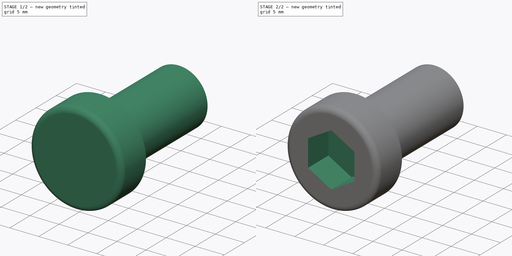
[diagram: build sequence overview — one tinted view per stage of 2, left to right]
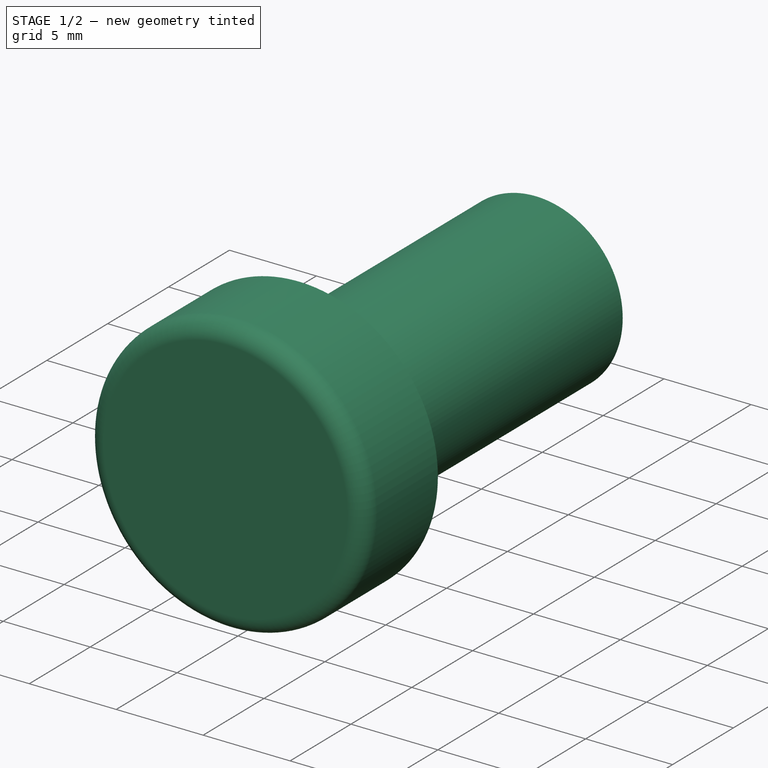
[diagram: stage 1 of 2 — iso view after this stage's code; geometry added in this stage tinted green]
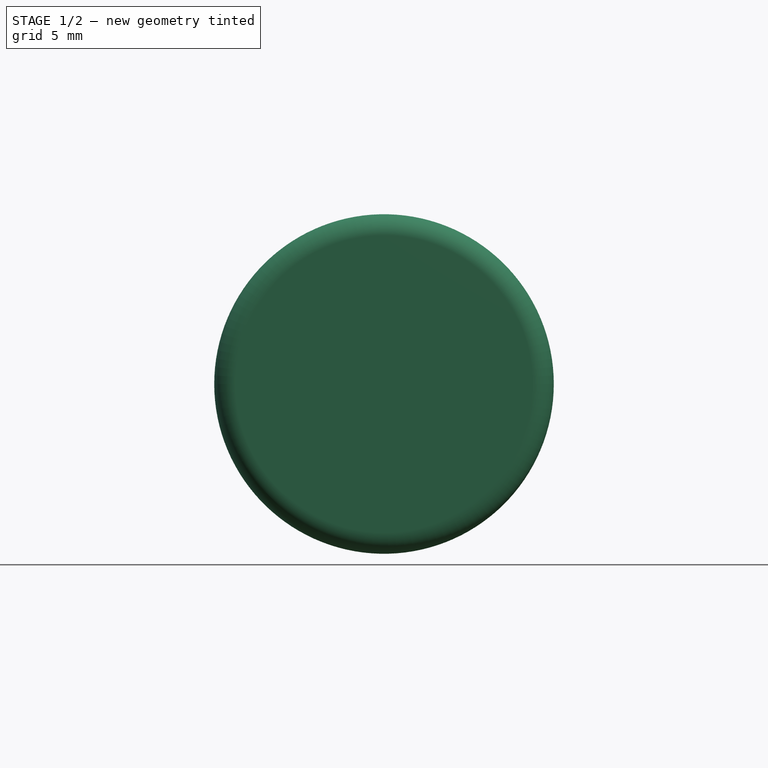
[diagram: stage 1 of 2 — front view after this stage's code; geometry added in this stage tinted green]
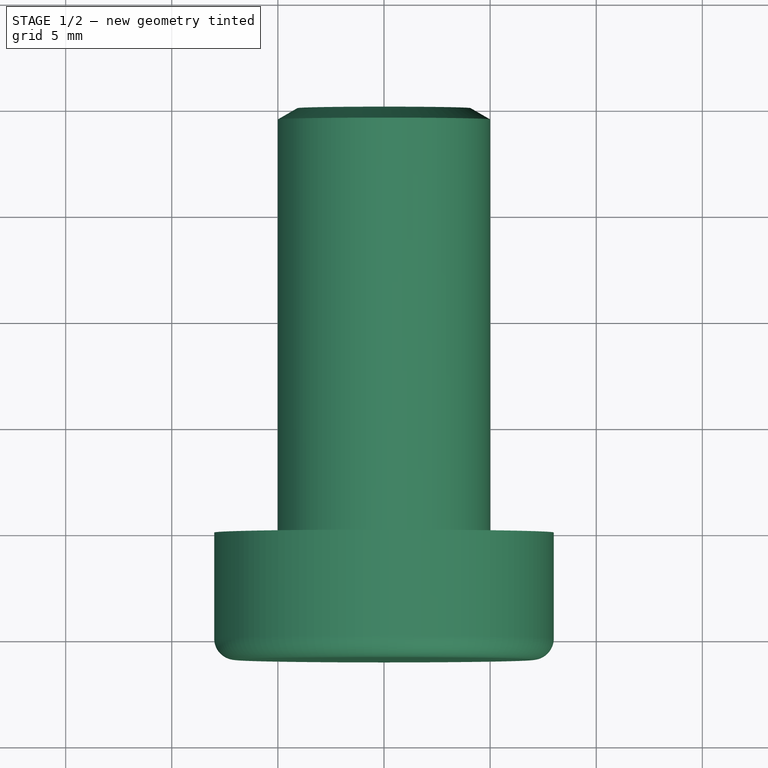
[diagram: stage 1 of 2 — top view after this stage's code; geometry added in this stage tinted green]
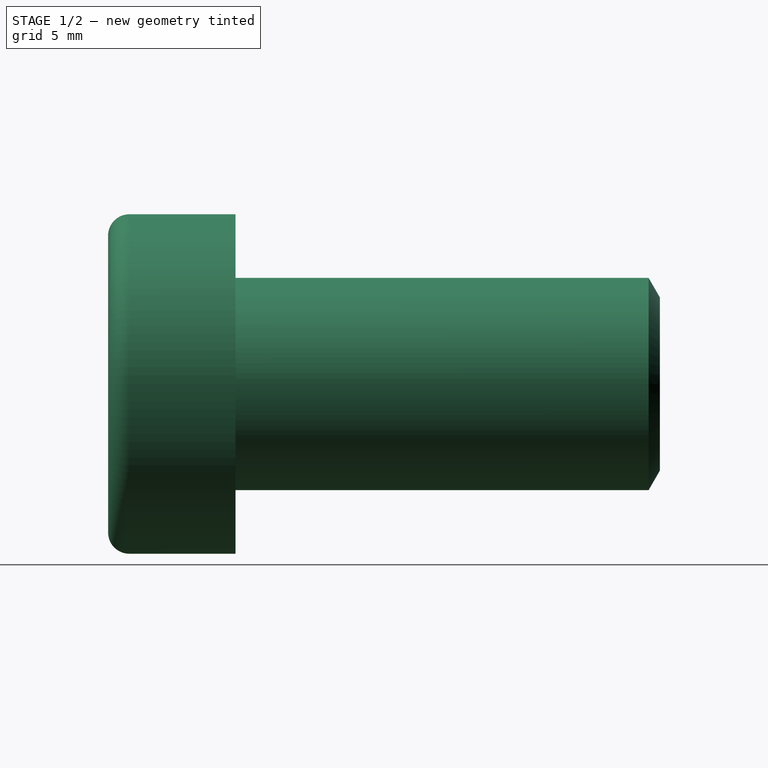
[diagram: stage 1 of 2 — right view after this stage's code; geometry added in this stage tinted green]
FCSTD DOCUMENT  (FreeCAD 0.14R3700 (Git))
Label: Zyl-Schraube_DIN6912-M10
License: CC-BY 3.0
LicenseURL: http://creativecommons.org/licenses/by/3.0/
objects: Sketcher::SketchObject×2, PartDesign::Revolution×1, PartDesign::Pocket×1
note: 6 computed .brp shape members not serialized (recipe doc carries the construction recipe); baked Part::Feature solids carry a one-line shape summary decoded from their .brp

FEATURE [Sketcher::SketchObject] Sketch
  sketch-geometry (8):
    g0: LineSegment StartX=5 StartY=0 StartZ=0 EndX=8 EndY=0 EndZ=0
    g1: LineSegment StartX=8 StartY=0 StartZ=0 EndX=8 EndY=-5 EndZ=0
    g2: LineSegment StartX=7 StartY=-6 StartZ=0 EndX=0 EndY=-6 EndZ=0
    g3: LineSegment StartX=0 StartY=-6 StartZ=0 EndX=0 EndY=20 EndZ=0
    g4: LineSegment StartX=0 StartY=20 StartZ=0 EndX=4.08 EndY=20 EndZ=0
    g5: LineSegment StartX=4.08 StartY=20 StartZ=0 EndX=5 EndY=19.4688 EndZ=0
    g6: LineSegment StartX=5 StartY=19.4688 StartZ=0 EndX=5 EndY=0 EndZ=0
    g7: ArcOfCircle CenterX=7 CenterY=-5 CenterZ=0 NormalX=0 NormalY=0 NormalZ=1 Radius=1 StartAngle=4.71239 EndAngle=6.28319
  constraints (23):
    c: PointOnObject(g0,g-1)
    c: Horizontal(g0)
    c: Coincident(g0,g1)
    c: Vertical(g1)
    c: PointOnObject(g2,g-2)
    c: Horizontal(g2)
    c: Coincident(g2,g3)
    c: Vertical(g3)
    c: Coincident(g3,g4)
    c: Horizontal(g4)
    c: Coincident(g4,g5)
    c: Coincident(g5,g6)
    c: Coincident(g6,g0)
    c: Vertical(g6)
    c: Tangent(g2,g7)
    c: Tangent(g1,g7)
    c: Radius(g7) = 1
    c: Distance(g2,g0) = 6
    c: Distance(g1,g3) = 8
    c: Distance(g5,g3) = 5
    c: Angle(g4,g5) = 2.61799
    c: Distance(g4) = 4.08
    c: Distance(g4,g0) = 20
FEATURE [PartDesign::Revolution] Revolution
  Angle = 360
  Axis = (0,1,0)
  Base = (0,0,0)
  ReferenceAxis = -> Sketch [V_Axis]
  Reversed = true
  Sketch = -> Sketch
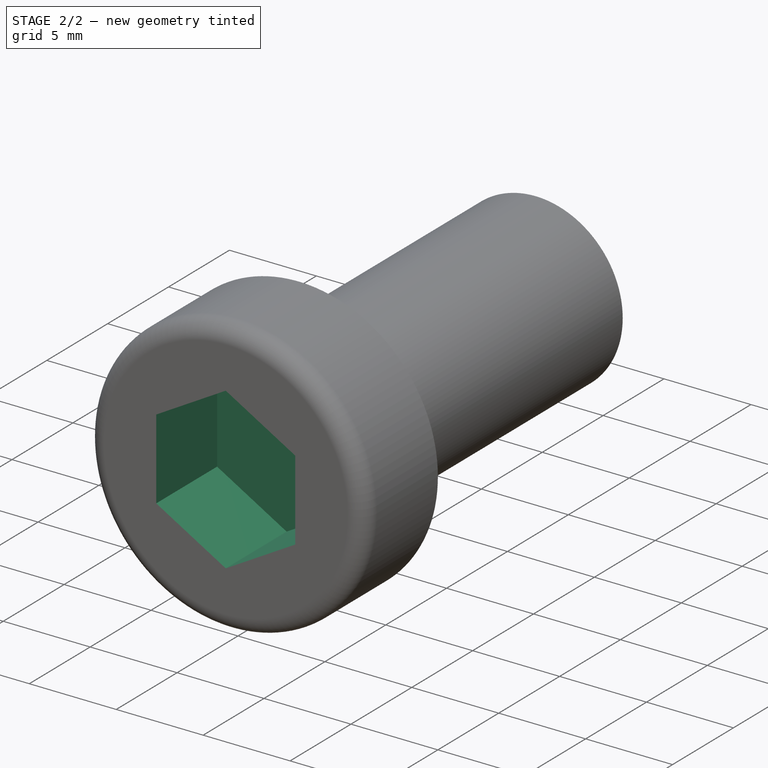
[diagram: stage 2 of 2 — iso view after this stage's code; geometry added in this stage tinted green]
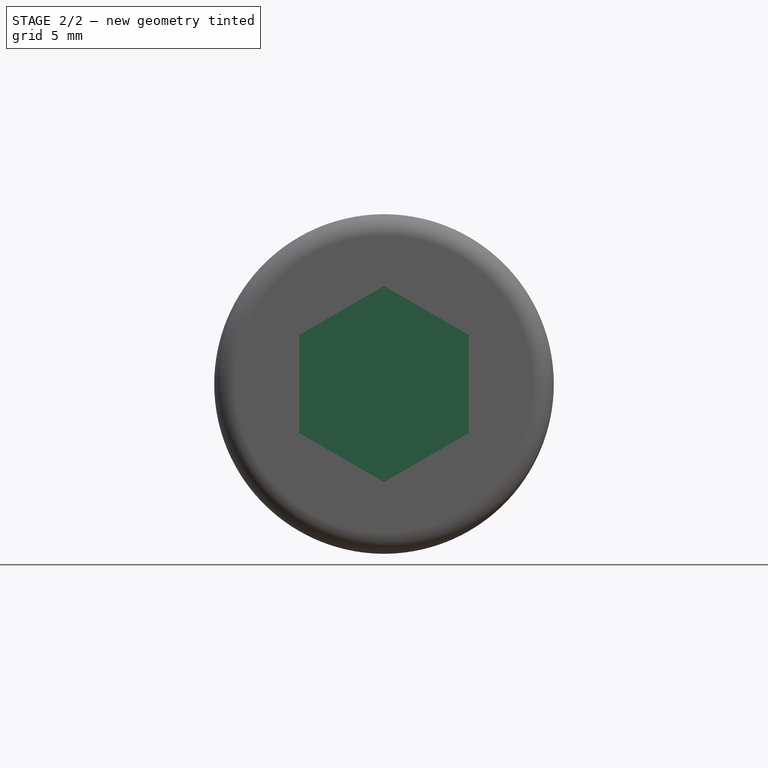
[diagram: stage 2 of 2 — front view after this stage's code; geometry added in this stage tinted green]
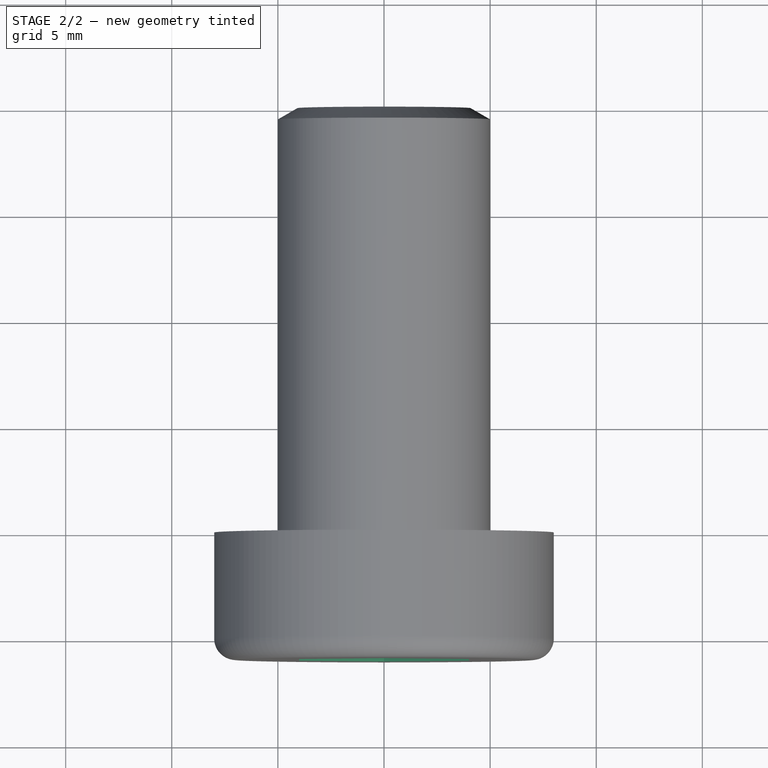
[diagram: stage 2 of 2 — top view after this stage's code; geometry added in this stage tinted green]
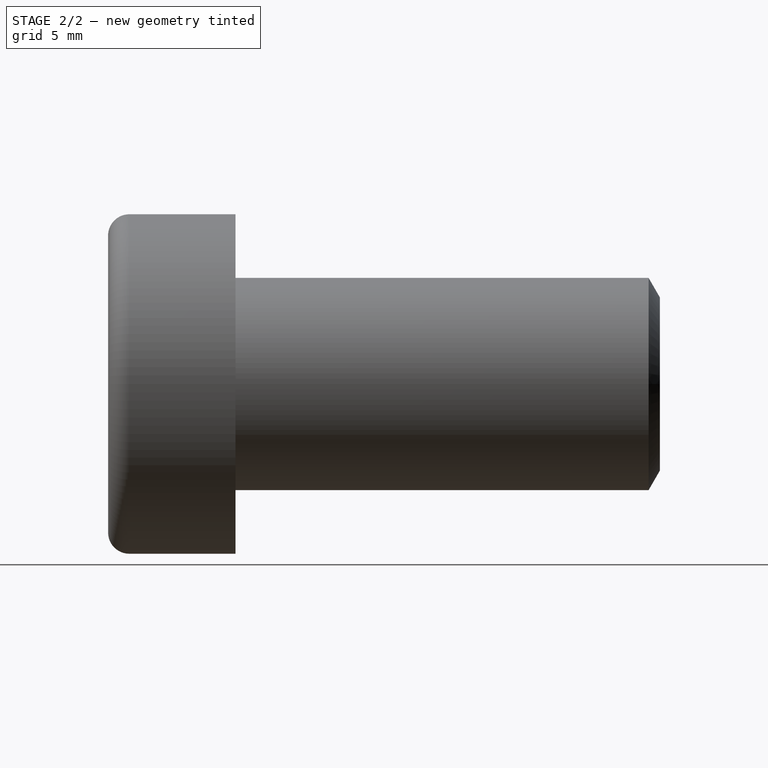
[diagram: stage 2 of 2 — right view after this stage's code; geometry added in this stage tinted green]
FEATURE [Sketcher::SketchObject] Sketch001
  Placement = pos=(0,-6,0) rot=(1,0,0;1.5708rad)
  Support = -> Revolution [Face1]
  sketch-geometry (6):
    g0: LineSegment StartX=-4 StartY=2.3094 StartZ=0 EndX=-4 EndY=-2.3094 EndZ=0
    g1: LineSegment StartX=-4 StartY=-2.3094 StartZ=0 EndX=0 EndY=-4.6188 EndZ=0
    g2: LineSegment StartX=0 StartY=-4.6188 StartZ=0 EndX=4 EndY=-2.3094 EndZ=0
    g3: LineSegment StartX=4 StartY=-2.3094 StartZ=0 EndX=4 EndY=2.3094 EndZ=0
    g4: LineSegment StartX=4 StartY=2.3094 StartZ=0 EndX=0 EndY=4.6188 EndZ=0
    g5: LineSegment StartX=0 StartY=4.6188 StartZ=0 EndX=-4 EndY=2.3094 EndZ=0
  constraints (18):
    c: Vertical(g0)
    c: Coincident(g0,g1)
    c: PointOnObject(g1,g-2)
    c: Coincident(g1,g2)
    c: Coincident(g2,g3)
    c: Vertical(g3)
    c: Coincident(g3,g4)
    c: PointOnObject(g4,g-2)
    c: Coincident(g4,g5)
    c: Coincident(g5,g0)
    c: Equal(g5,g0)
    c: Equal(g0,g1)
    c: Equal(g1,g2)
    c: Equal(g2,g3)
    c: Equal(g3,g4)
    c: Angle(g4,g3) = 2.0944
    c: Symmetric(g4,g1,g-1)
    c: DistanceX(g3,g0) = -8
FEATURE [PartDesign::Pocket] Pocket  label="Zyl-Schraube DIN 6912 - M10 x 20 #"
  Length = 5
  Sketch = -> Sketch001
  Type = 0
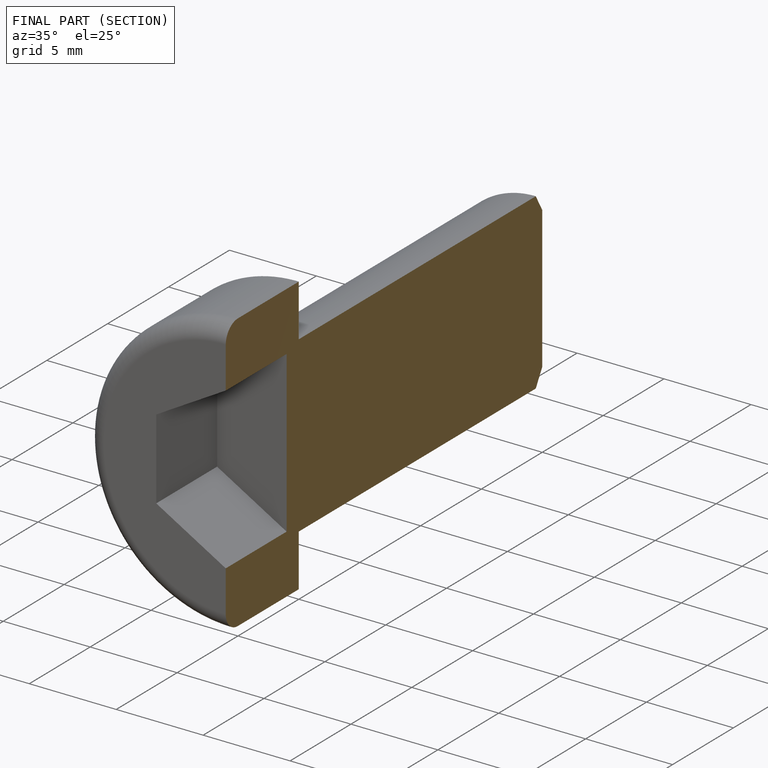
[diagram: finished part — half-section view (interior)]
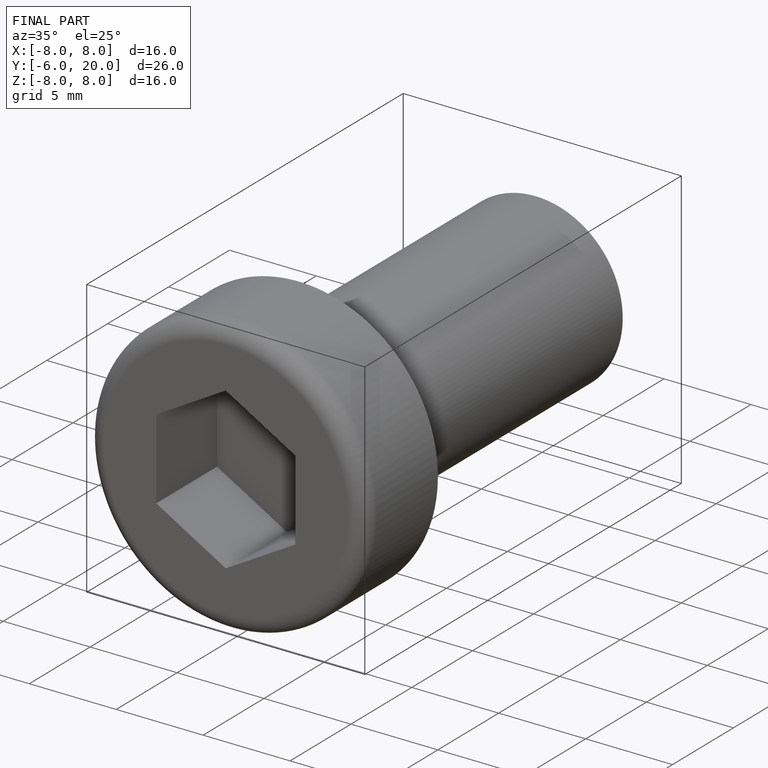
[diagram: finished part — iso view with bounding-box wireframe]
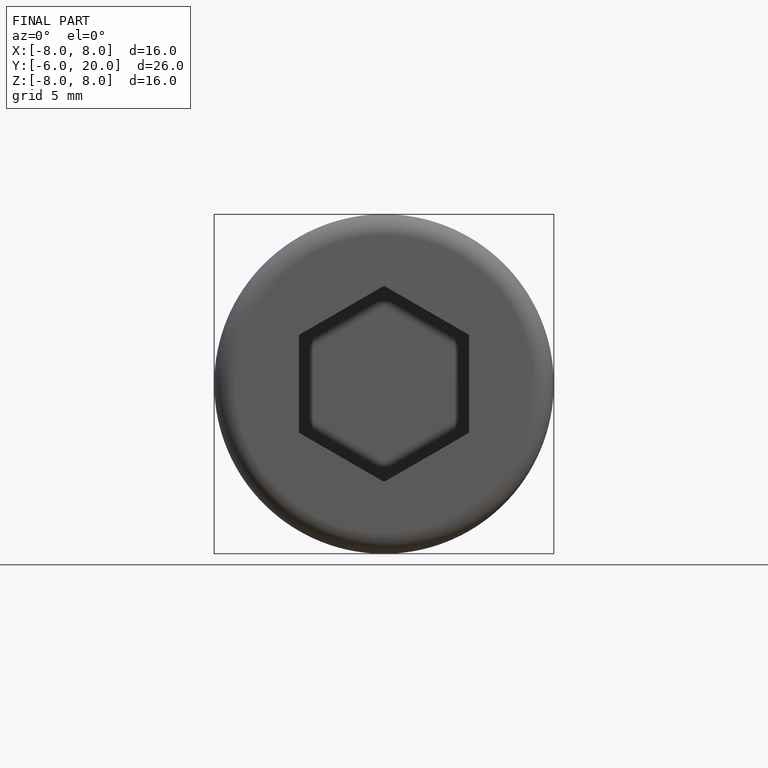
[diagram: finished part — front view with bounding-box wireframe]
